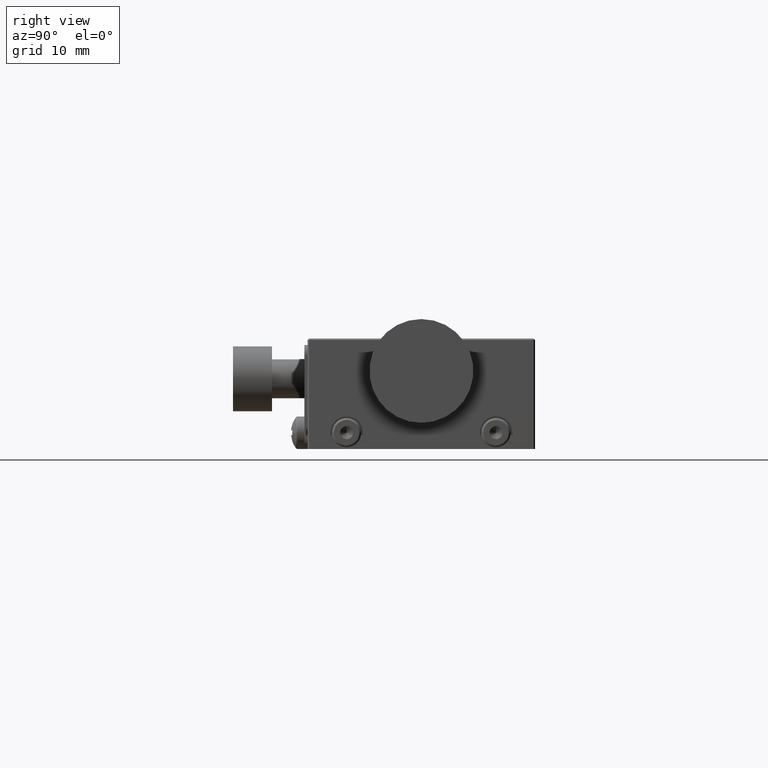
[diagram: clean part render]
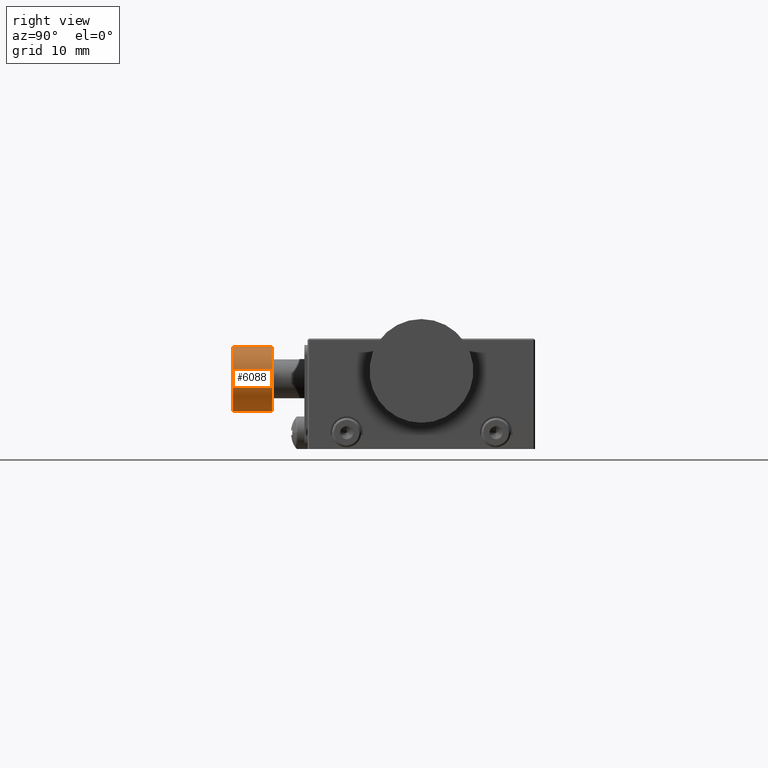
[diagram: same view with one face highlighted and labeled with its STEP entity id]
A machine part, right view. The second image highlights one B-rep face of the part: STEP entity #6088.
In plain terms, the highlighted cylindrical surface (edge-blend (fillet) strip) has radius 5 mm, axis along (-0, -1, 0).
Its self-contained STEP definition (entity closure, byte-faithful):
#145 = EDGE_CURVE ( 'NONE', #9115, #7024, #5076, .T. ) ;
#277 = AXIS2_PLACEMENT_3D ( 'NONE', #3957, #9613, #9619 ) ;
#298 = EDGE_CURVE ( 'NONE', #4574, #4095, #6452, .T. ) ;
#1896 = DIRECTION ( 'NONE',  ( 0.0000000000000000000, 0.0000000000000000000, -1.000000000000000000 ) ) ;
#1992 = VECTOR ( 'NONE', #9442, 1000.000000000000000 ) ;
#3462 = CARTESIAN_POINT ( 'NONE',  ( -20.00000000000000000, -29.00000000000000000, 5.800000000101780600 ) ) ;
#3831 = DIRECTION ( 'NONE',  ( -0.0000000000000000000, -1.000000000000000000, 0.0000000000000000000 ) ) ;
#3956 = DIRECTION ( 'NONE',  ( -0.0000000000000000000, -1.000000000000000000, 0.0000000000000000000 ) ) ;
#3957 = CARTESIAN_POINT ( 'NONE',  ( -20.00000000000000000, -29.00000000000000000, 10.80000000000000100 ) ) ;
#3978 = AXIS2_PLACEMENT_3D ( 'NONE', #10658, #3956, #1896 ) ;
#4095 = VERTEX_POINT ( 'NONE', #10029 ) ;
#4264 = CARTESIAN_POINT ( 'NONE',  ( -20.00000000000000000, -23.00000000000000000, 15.79999999989822300 ) ) ;
#4574 = VERTEX_POINT ( 'NONE', #3462 ) ;
#4657 = CARTESIAN_POINT ( 'NONE',  ( -20.00000000000000000, -23.00000000000000000, 5.800000000101780600 ) ) ;
#4667 = ORIENTED_EDGE ( 'NONE', *, *, #298, .F. ) ;
#4723 = EDGE_LOOP ( 'NONE', ( #9306, #8487, #4667, #6181 ) ) ;
#4859 = CYLINDRICAL_SURFACE ( 'NONE', #3978, 4.999999999898219200 ) ;
#5076 = CIRCLE ( 'NONE', #10426, 4.999999999898219200 ) ;
#6088 = ADVANCED_FACE ( 'NONE', ( #10499 ), #4859, .T. ) ;
#6124 = LINE ( 'NONE', #4657, #10428 ) ;
#6181 = ORIENTED_EDGE ( 'NONE', *, *, #10961, .F. ) ;
#6452 = CIRCLE ( 'NONE', #277, 4.999999999898219200 ) ;
#6556 = LINE ( 'NONE', #4264, #1992 ) ;
#7024 = VERTEX_POINT ( 'NONE', #9200 ) ;
#8487 = ORIENTED_EDGE ( 'NONE', *, *, #10135, .T. ) ;
#8564 = CARTESIAN_POINT ( 'NONE',  ( -20.00000000000000000, -23.00000000000000000, 15.79999999989822300 ) ) ;
#9080 = CARTESIAN_POINT ( 'NONE',  ( -20.00000000000000000, -23.00000000000000000, 10.80000000000000100 ) ) ;
#9115 = VERTEX_POINT ( 'NONE', #8564 ) ;
#9200 = CARTESIAN_POINT ( 'NONE',  ( -20.00000000000000000, -23.00000000000000000, 5.800000000101780600 ) ) ;
#9216 = DIRECTION ( 'NONE',  ( 0.0000000000000000000, 1.000000000000000000, -0.0000000000000000000 ) ) ;
#9306 = ORIENTED_EDGE ( 'NONE', *, *, #145, .F. ) ;
#9442 = DIRECTION ( 'NONE',  ( -0.0000000000000000000, -1.000000000000000000, 0.0000000000000000000 ) ) ;
#9613 = DIRECTION ( 'NONE',  ( -0.0000000000000000000, -1.000000000000000000, 0.0000000000000000000 ) ) ;
#9619 = DIRECTION ( 'NONE',  ( 0.0000000000000000000, 0.0000000000000000000, -1.000000000000000000 ) ) ;
#10029 = CARTESIAN_POINT ( 'NONE',  ( -20.00000000000000000, -29.00000000000000000, 15.79999999989822300 ) ) ;
#10135 = EDGE_CURVE ( 'NONE', #9115, #4095, #6556, .T. ) ;
#10426 = AXIS2_PLACEMENT_3D ( 'NONE', #9080, #9216, #10796 ) ;
#10428 = VECTOR ( 'NONE', #3831, 1000.000000000000000 ) ;
#10499 = FACE_OUTER_BOUND ( 'NONE', #4723, .T. ) ;
#10658 = CARTESIAN_POINT ( 'NONE',  ( -20.00000000000000000, -23.00000000000000000, 10.80000000000000100 ) ) ;
#10796 = DIRECTION ( 'NONE',  ( 0.0000000000000000000, 0.0000000000000000000, -1.000000000000000000 ) ) ;
#10961 = EDGE_CURVE ( 'NONE', #7024, #4574, #6124, .T. ) ;